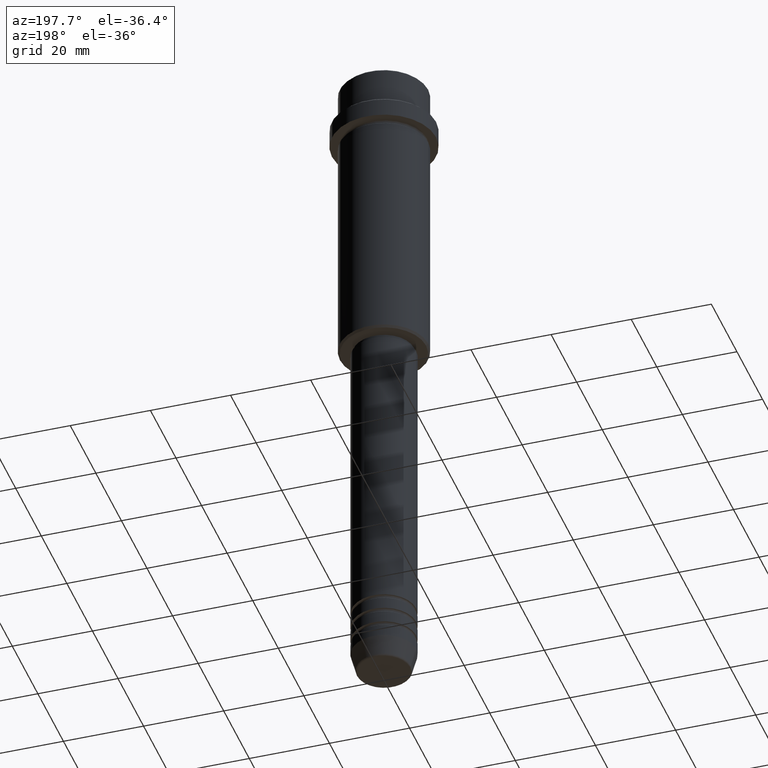
[diagram: clean part render]
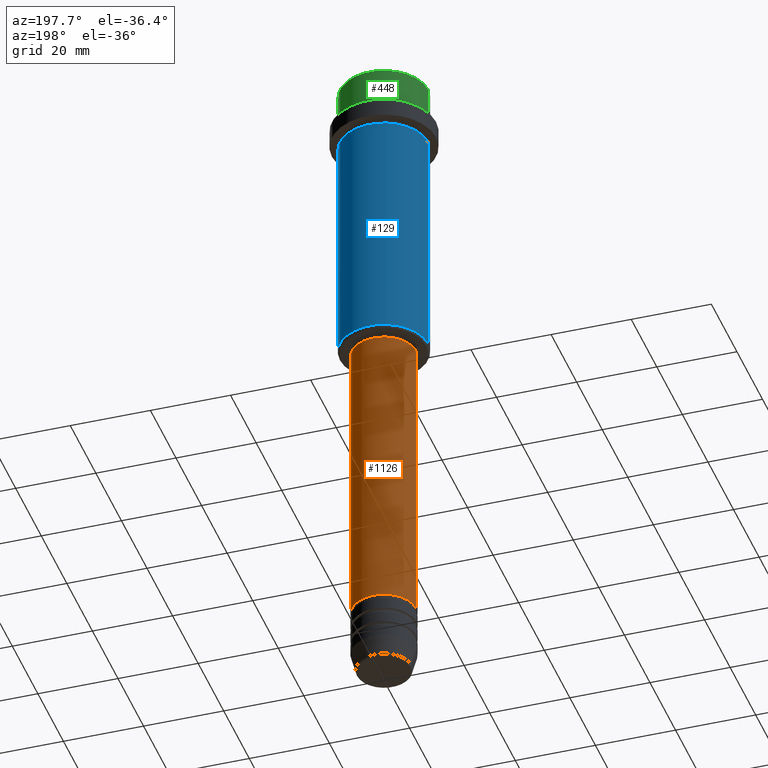
[diagram: same view with three faces highlighted in distinct colors, each labeled with its STEP entity id]
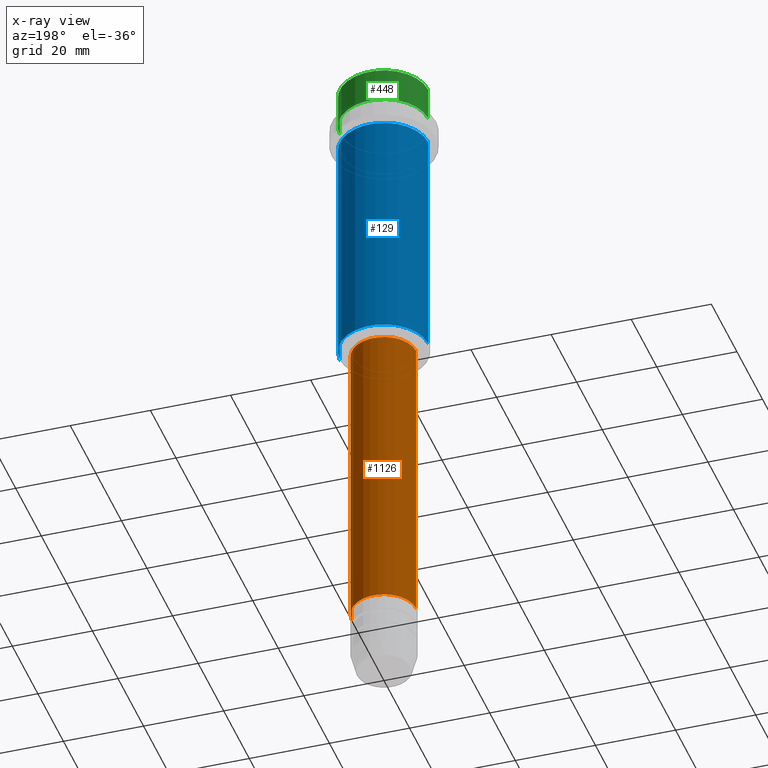
[diagram: x-ray of the same camera — body ghosted, the three highlighted faces saturated]
A machine part, auxiliary view with three faces highlighted in distinct colors.
The next image is the same camera in x-ray (body ghosted, the three faces saturated) — at least one of them is partly hidden behind the body in this view.
Their STEP definitions:

[orange] entity #1126 — the highlighted cylindrical surface (edge-blend (fillet) strip) has radius 8 mm, axis along (-0, -0, 1).
#77 = DIRECTION ( 'NONE',  ( 1.000000000000000000, 0.000000000000000000, 0.000000000000000000 ) ) ;
#87 = EDGE_CURVE ( 'NONE', #908, #184, #855, .T. ) ;
#182 = CYLINDRICAL_SURFACE ( 'NONE', #1261, 8.000000000000000000 ) ;
#184 = VERTEX_POINT ( 'NONE', #546 ) ;
#186 = VERTEX_POINT ( 'NONE', #772 ) ;
#189 = DIRECTION ( 'NONE',  ( -0.000000000000000000, -0.000000000000000000, 1.000000000000000000 ) ) ;
#312 = LINE ( 'NONE', #631, #383 ) ;
#338 = DIRECTION ( 'NONE',  ( 1.000000000000000000, 0.000000000000000000, 0.000000000000000000 ) ) ;
#370 = CARTESIAN_POINT ( 'NONE',  ( 0.000000000000000000, 0.000000000000000000, -152.9999999999998863 ) ) ;
#382 = AXIS2_PLACEMENT_3D ( 'NONE', #370, #1332, #338 ) ;
#383 = VECTOR ( 'NONE', #736, 1000.000000000000000 ) ;
#414 = ORIENTED_EDGE ( 'NONE', *, *, #87, .F. ) ;
#457 = ORIENTED_EDGE ( 'NONE', *, *, #1185, .T. ) ;
#464 = CIRCLE ( 'NONE', #617, 8.000000000000000000 ) ;
#524 = VECTOR ( 'NONE', #1385, 1000.000000000000000 ) ;
#546 = CARTESIAN_POINT ( 'NONE',  ( 8.000000000000000000, 0.000000000000000000, -76.99999999999995737 ) ) ;
#617 = AXIS2_PLACEMENT_3D ( 'NONE', #1038, #189, #77 ) ;
#631 = CARTESIAN_POINT ( 'NONE',  ( -8.000000000000000000, 9.797174393178825657E-16, 0.000000000000000000 ) ) ;
#715 = CARTESIAN_POINT ( 'NONE',  ( 0.000000000000000000, 0.000000000000000000, 0.000000000000000000 ) ) ;
#736 = DIRECTION ( 'NONE',  ( -0.000000000000000000, -0.000000000000000000, 1.000000000000000000 ) ) ;
#772 = CARTESIAN_POINT ( 'NONE',  ( -8.000000000000000000, 9.797174393178825657E-16, -76.99999999999995737 ) ) ;
#784 = CARTESIAN_POINT ( 'NONE',  ( 8.000000000000000000, 0.000000000000000000, -152.9999999999998863 ) ) ;
#792 = CIRCLE ( 'NONE', #382, 8.000000000000000000 ) ;
#829 = DIRECTION ( 'NONE',  ( -0.000000000000000000, -0.000000000000000000, 1.000000000000000000 ) ) ;
#830 = CARTESIAN_POINT ( 'NONE',  ( 8.000000000000000000, 0.000000000000000000, 0.000000000000000000 ) ) ;
#844 = VERTEX_POINT ( 'NONE', #1045 ) ;
#855 = LINE ( 'NONE', #830, #524 ) ;
#908 = VERTEX_POINT ( 'NONE', #784 ) ;
#1038 = CARTESIAN_POINT ( 'NONE',  ( 0.000000000000000000, 0.000000000000000000, -76.99999999999995737 ) ) ;
#1044 = EDGE_CURVE ( 'NONE', #908, #844, #792, .T. ) ;
#1045 = CARTESIAN_POINT ( 'NONE',  ( -8.000000000000000000, 9.797174393178825657E-16, -152.9999999999998863 ) ) ;
#1126 = ADVANCED_FACE ( 'NONE', ( #1227 ), #182, .T. ) ;
#1133 = EDGE_CURVE ( 'NONE', #184, #186, #464, .T. ) ;
#1185 = EDGE_CURVE ( 'NONE', #844, #186, #312, .T. ) ;
#1227 = FACE_OUTER_BOUND ( 'NONE', #1320, .T. ) ;
#1248 = ORIENTED_EDGE ( 'NONE', *, *, #1133, .F. ) ;
#1261 = AXIS2_PLACEMENT_3D ( 'NONE', #715, #829, #1389 ) ;
#1320 = EDGE_LOOP ( 'NONE', ( #1375, #457, #1248, #414 ) ) ;
#1332 = DIRECTION ( 'NONE',  ( -0.000000000000000000, -0.000000000000000000, 1.000000000000000000 ) ) ;
#1375 = ORIENTED_EDGE ( 'NONE', *, *, #1044, .T. ) ;
#1385 = DIRECTION ( 'NONE',  ( -0.000000000000000000, -0.000000000000000000, 1.000000000000000000 ) ) ;
#1389 = DIRECTION ( 'NONE',  ( 1.000000000000000000, 0.000000000000000000, 0.000000000000000000 ) ) ;

[blue] entity #129 — the highlighted cylindrical surface (partial cylindrical patch) has radius 11 mm, axis along (-0, -0, 1).
#14 = ORIENTED_EDGE ( 'NONE', *, *, #663, .F. ) ;
#18 = EDGE_LOOP ( 'NONE', ( #1343, #540, #14, #266 ) ) ;
#41 = DIRECTION ( 'NONE',  ( -0.000000000000000000, -0.000000000000000000, 1.000000000000000000 ) ) ;
#45 = VERTEX_POINT ( 'NONE', #101 ) ;
#82 = AXIS2_PLACEMENT_3D ( 'NONE', #1144, #177, #1396 ) ;
#101 = CARTESIAN_POINT ( 'NONE',  ( -10.99999999999997158, 1.347111479062085841E-15, -16.00000000000000355 ) ) ;
#105 = VECTOR ( 'NONE', #256, 1000.000000000000000 ) ;
#108 = VECTOR ( 'NONE', #408, 1000.000000000000000 ) ;
#120 = DIRECTION ( 'NONE',  ( 1.000000000000000000, 0.000000000000000000, 0.000000000000000000 ) ) ;
#129 = ADVANCED_FACE ( 'NONE', ( #1172 ), #539, .T. ) ;
#177 = DIRECTION ( 'NONE',  ( -0.000000000000000000, -0.000000000000000000, 1.000000000000000000 ) ) ;
#256 = DIRECTION ( 'NONE',  ( -0.000000000000000000, -0.000000000000000000, 1.000000000000000000 ) ) ;
#266 = ORIENTED_EDGE ( 'NONE', *, *, #1299, .F. ) ;
#286 = CARTESIAN_POINT ( 'NONE',  ( 10.99999999999997158, 0.000000000000000000, -16.00000000000000355 ) ) ;
#346 = LINE ( 'NONE', #569, #105 ) ;
#408 = DIRECTION ( 'NONE',  ( -0.000000000000000000, -0.000000000000000000, 1.000000000000000000 ) ) ;
#485 = CIRCLE ( 'NONE', #82, 10.99999999999998757 ) ;
#539 = CYLINDRICAL_SURFACE ( 'NONE', #635, 10.99999999999998757 ) ;
#540 = ORIENTED_EDGE ( 'NONE', *, *, #1089, .T. ) ;
#557 = CARTESIAN_POINT ( 'NONE',  ( 0.000000000000000000, 0.000000000000000000, -16.00000000000000355 ) ) ;
#569 = CARTESIAN_POINT ( 'NONE',  ( -10.99999999999998757, 1.347111479062086827E-15, 0.000000000000000000 ) ) ;
#581 = DIRECTION ( 'NONE',  ( 1.000000000000000000, 0.000000000000000000, 0.000000000000000000 ) ) ;
#635 = AXIS2_PLACEMENT_3D ( 'NONE', #897, #1337, #120 ) ;
#663 = EDGE_CURVE ( 'NONE', #846, #45, #1301, .T. ) ;
#799 = CARTESIAN_POINT ( 'NONE',  ( -10.99999999999998757, 1.347111479062086827E-15, -75.50000000000000000 ) ) ;
#831 = EDGE_CURVE ( 'NONE', #1296, #1096, #485, .T. ) ;
#846 = VERTEX_POINT ( 'NONE', #286 ) ;
#897 = CARTESIAN_POINT ( 'NONE',  ( 0.000000000000000000, 0.000000000000000000, 0.000000000000000000 ) ) ;
#1089 = EDGE_CURVE ( 'NONE', #1096, #45, #346, .T. ) ;
#1096 = VERTEX_POINT ( 'NONE', #799 ) ;
#1144 = CARTESIAN_POINT ( 'NONE',  ( 0.000000000000000000, 0.000000000000000000, -75.50000000000000000 ) ) ;
#1172 = FACE_OUTER_BOUND ( 'NONE', #18, .T. ) ;
#1276 = LINE ( 'NONE', #1380, #108 ) ;
#1296 = VERTEX_POINT ( 'NONE', #1361 ) ;
#1299 = EDGE_CURVE ( 'NONE', #1296, #846, #1276, .T. ) ;
#1301 = CIRCLE ( 'NONE', #1324, 10.99999999999997158 ) ;
#1324 = AXIS2_PLACEMENT_3D ( 'NONE', #557, #41, #581 ) ;
#1337 = DIRECTION ( 'NONE',  ( -0.000000000000000000, -0.000000000000000000, 1.000000000000000000 ) ) ;
#1343 = ORIENTED_EDGE ( 'NONE', *, *, #831, .T. ) ;
#1361 = CARTESIAN_POINT ( 'NONE',  ( 10.99999999999998757, 0.000000000000000000, -75.50000000000000000 ) ) ;
#1380 = CARTESIAN_POINT ( 'NONE',  ( 10.99999999999998757, 0.000000000000000000, 0.000000000000000000 ) ) ;
#1396 = DIRECTION ( 'NONE',  ( -1.000000000000000000, 0.000000000000000000, 0.000000000000000000 ) ) ;

[green] entity #448 — the highlighted cylindrical surface (partial cylindrical patch) has radius 11 mm, axis along (-0, -0, 1).
#4 = CYLINDRICAL_SURFACE ( 'NONE', #406, 10.99999999999998757 ) ;
#11 = VECTOR ( 'NONE', #993, 1000.000000000000000 ) ;
#38 = CARTESIAN_POINT ( 'NONE',  ( 10.99999999999997158, 0.000000000000000000, -9.000000000000000000 ) ) ;
#89 = ORIENTED_EDGE ( 'NONE', *, *, #228, .T. ) ;
#113 = DIRECTION ( 'NONE',  ( -0.000000000000000000, -0.000000000000000000, 1.000000000000000000 ) ) ;
#118 = FACE_OUTER_BOUND ( 'NONE', #1335, .T. ) ;
#134 = CARTESIAN_POINT ( 'NONE',  ( -10.99999999999998757, 1.347111479062086827E-15, 0.000000000000000000 ) ) ;
#137 = VERTEX_POINT ( 'NONE', #1216 ) ;
#194 = VECTOR ( 'NONE', #454, 1000.000000000000000 ) ;
#216 = CARTESIAN_POINT ( 'NONE',  ( 0.000000000000000000, 0.000000000000000000, -9.000000000000000000 ) ) ;
#228 = EDGE_CURVE ( 'NONE', #695, #1345, #987, .T. ) ;
#236 = EDGE_CURVE ( 'NONE', #316, #137, #875, .T. ) ;
#316 = VERTEX_POINT ( 'NONE', #38 ) ;
#325 = CARTESIAN_POINT ( 'NONE',  ( 0.000000000000000000, 0.000000000000000000, 0.000000000000000000 ) ) ;
#349 = AXIS2_PLACEMENT_3D ( 'NONE', #711, #506, #955 ) ;
#406 = AXIS2_PLACEMENT_3D ( 'NONE', #325, #1403, #742 ) ;
#448 = ADVANCED_FACE ( 'NONE', ( #118 ), #4, .T. ) ;
#454 = DIRECTION ( 'NONE',  ( -0.000000000000000000, -0.000000000000000000, 1.000000000000000000 ) ) ;
#503 = AXIS2_PLACEMENT_3D ( 'NONE', #216, #113, #536 ) ;
#506 = DIRECTION ( 'NONE',  ( 0.000000000000000000, 0.000000000000000000, -1.000000000000000000 ) ) ;
#536 = DIRECTION ( 'NONE',  ( 1.000000000000000000, 0.000000000000000000, 0.000000000000000000 ) ) ;
#562 = EDGE_CURVE ( 'NONE', #316, #695, #1399, .T. ) ;
#612 = ORIENTED_EDGE ( 'NONE', *, *, #562, .T. ) ;
#669 = CARTESIAN_POINT ( 'NONE',  ( 10.99999999999998757, 0.000000000000000000, 0.000000000000000000 ) ) ;
#695 = VERTEX_POINT ( 'NONE', #997 ) ;
#711 = CARTESIAN_POINT ( 'NONE',  ( 0.000000000000000000, 0.000000000000000000, -0.4999999999999882871 ) ) ;
#742 = DIRECTION ( 'NONE',  ( 1.000000000000000000, 0.000000000000000000, 0.000000000000000000 ) ) ;
#779 = EDGE_CURVE ( 'NONE', #1345, #137, #959, .T. ) ;
#806 = ORIENTED_EDGE ( 'NONE', *, *, #236, .F. ) ;
#807 = CARTESIAN_POINT ( 'NONE',  ( -10.99999999999998757, 1.347111479062086827E-15, -0.4999999999999882871 ) ) ;
#875 = LINE ( 'NONE', #669, #11 ) ;
#955 = DIRECTION ( 'NONE',  ( 1.000000000000000000, 0.000000000000000000, 0.000000000000000000 ) ) ;
#959 = CIRCLE ( 'NONE', #349, 10.99999999999998757 ) ;
#987 = LINE ( 'NONE', #134, #194 ) ;
#993 = DIRECTION ( 'NONE',  ( -0.000000000000000000, -0.000000000000000000, 1.000000000000000000 ) ) ;
#997 = CARTESIAN_POINT ( 'NONE',  ( -10.99999999999997158, 1.347111479062085841E-15, -9.000000000000000000 ) ) ;
#1216 = CARTESIAN_POINT ( 'NONE',  ( 10.99999999999998757, 0.000000000000000000, -0.4999999999999882871 ) ) ;
#1335 = EDGE_LOOP ( 'NONE', ( #612, #89, #1369, #806 ) ) ;
#1345 = VERTEX_POINT ( 'NONE', #807 ) ;
#1369 = ORIENTED_EDGE ( 'NONE', *, *, #779, .T. ) ;
#1399 = CIRCLE ( 'NONE', #503, 10.99999999999997158 ) ;
#1403 = DIRECTION ( 'NONE',  ( -0.000000000000000000, -0.000000000000000000, 1.000000000000000000 ) ) ;